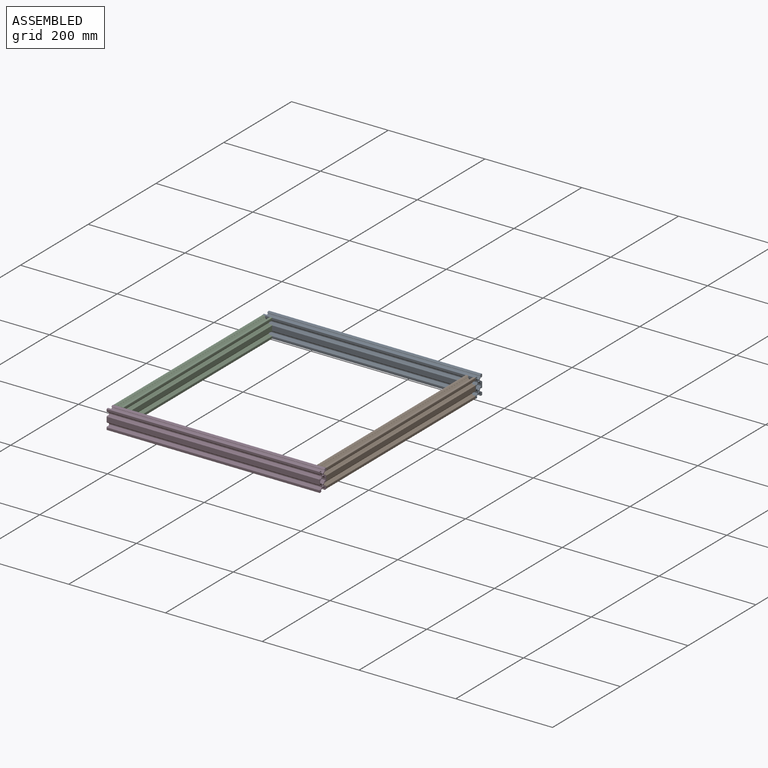
[diagram: assembled view]
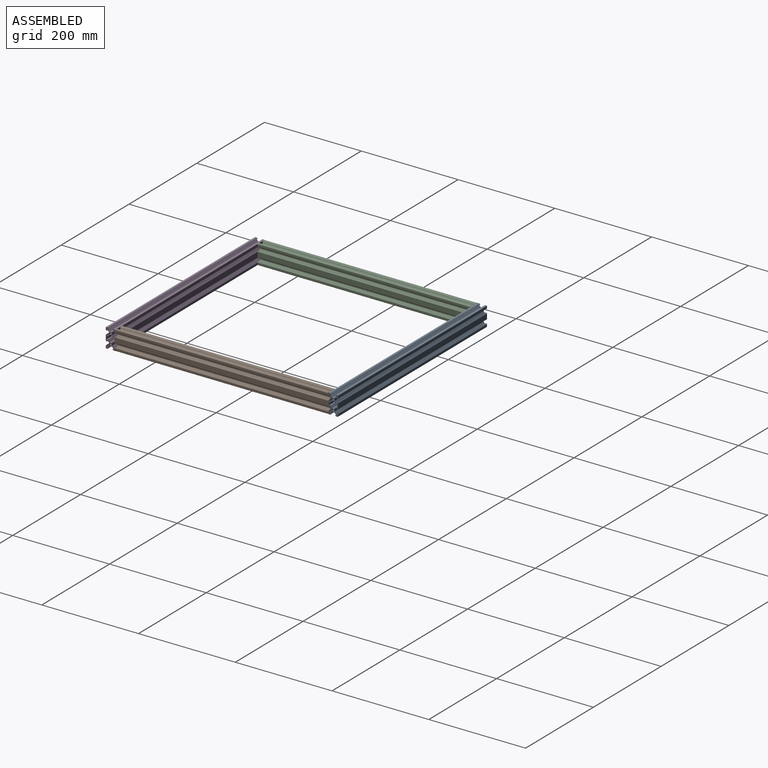
[diagram: assembled view, second angle]
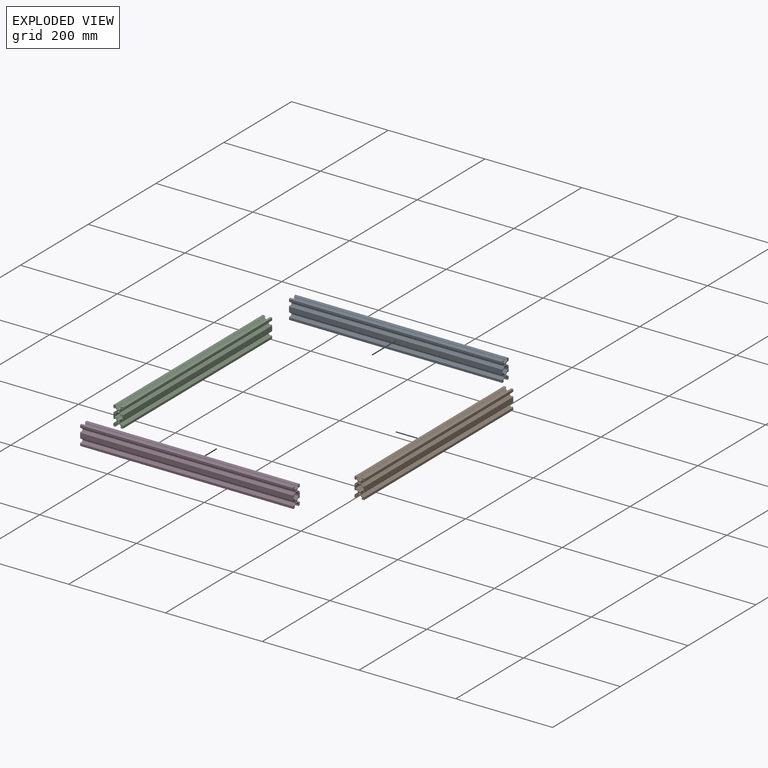
[diagram: exploded view]
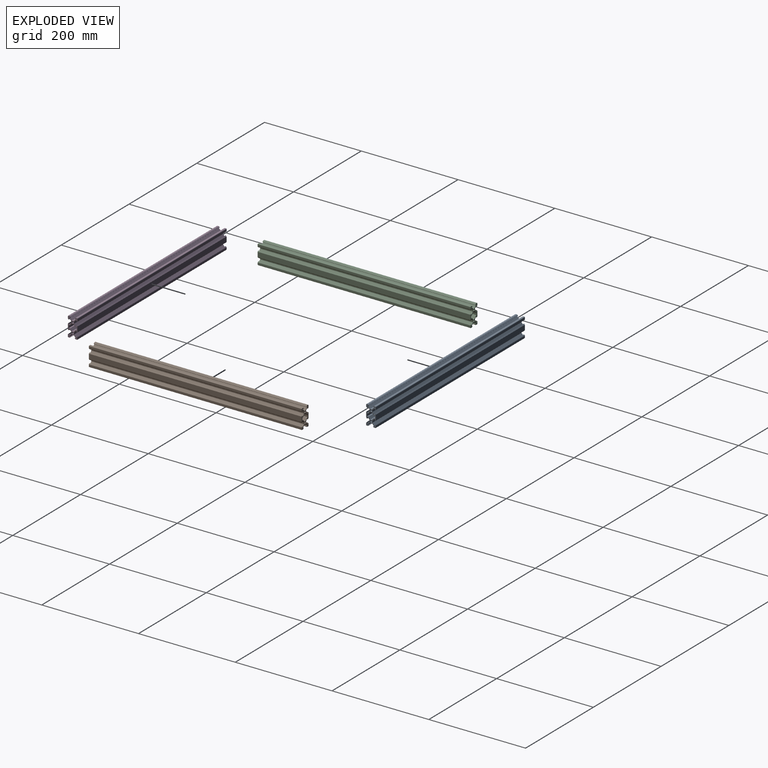
[diagram: exploded view, second angle]
ASSEMBLY  parts=4 mates=9
PART A: 104 faces, bbox 40x20x440 mm
  f0: plane 440x2.6mm, normal (1,0,0), area 1142.7mm2, adj f1,f101,f102,f103
  f1: plane 440x5.4mm, normal (0,-1,0), area 2376mm2, adj f0,f2,f102,f103
  f2: plane 440x2.6mm, normal (-1,0,0), area 1142.7mm2, adj f1,f3,f102,f103
  f3: plane 440x4.46mm, normal (-0.64,-0.77,0), area 2555.6mm2, adj f2,f4,f102,f103
  f4: plane 440x3.76mm, normal (-1,0,0), area 1656.5mm2, adj f3,f5,f102,f103
  f5: plane 440x4.46mm, normal (-0.64,0.77,0), area 2555.6mm2, adj f4,f6,f102,f103
  f6: plane 440x2.6mm, normal (-1,0,0), area 1142.7mm2, adj f5,f7,f102,f103
  f7: plane 440x5.4mm, normal (0,1,0), area 2376mm2, adj f6,f8,f102,f103
  f8: plane 440x2.6mm, normal (1,0,0), area 1142.7mm2, adj f7,f9,f102,f103
  f9: plane 440x4.46mm, normal (0.64,0.77,0), area 2555.6mm2, adj f8,f10,f102,f103
  f10: plane 440x3.76mm, normal (1,0,0), area 1656.5mm2, adj f9,f101,f102,f103
  f11: plane 440x1.06mm, normal (0.71,0.71,0), area 660mm2, adj f12,f96,f102,f103
  f12: plane 440x0.79mm, normal (1,0,0), area 346mm2, adj f11,f13,f102,f103
  f13: plane 440x1.85mm, normal (0,-1,0), area 812.7mm2, adj f12,f14,f102,f103
  f14: plane 440x1.85mm, normal (-1,0,0), area 812.7mm2, adj f13,f96,f102,f103
  f15: plane 440x0.79mm, normal (0,-1,0), area 346mm2, adj f16,f97,f102,f103
  f16: plane 440x1.85mm, normal (-1,0,0), area 812.7mm2, adj f15,f17,f102,f103
  f17: plane 440x1.85mm, normal (0,1,0), area 812.7mm2, adj f16,f18,f102,f103
  f18: plane 440x0.79mm, normal (1,0,0), area 346mm2, adj f17,f97,f102,f103
  f19: plane 440x0.79mm, normal (0,-1,0), area 346mm2, adj f20,f98,f102,f103
  f20: plane 440x1.06mm, normal (-0.71,-0.71,0), area 660mm2, adj f19,f21,f102,f103
  f21: plane 440x0.79mm, normal (-1,0,0), area 346mm2, adj f20,f22,f102,f103
  f22: plane 440x1.85mm, normal (0,1,0), area 812.7mm2, adj f21,f98,f102,f103
  f23: plane 440x1.85mm, normal (1,0,0), area 812.7mm2, adj f24,f99,f102,f103
  f24: plane 440x1.85mm, normal (0,-1,0), area 812.7mm2, adj f23,f25,f102,f103
  f25: plane 440x0.79mm, normal (-1,0,0), area 346mm2, adj f24,f26,f102,f103
  f26: plane 440x1.06mm, normal (-0.71,0.71,0), area 660mm2, adj f25,f99,f102,f103
  f27: plane 440x3.72mm, normal (0.71,0.71,0), area 2315.2mm2, adj f28,f100,f102,f103
  f28: plane 440x1.54mm, normal (1,0,0), area 676mm2, adj f27,f29,f102,f103
  f29: plane 440x2.4mm, normal (0,-1,0), area 1056mm2, adj f28,f30,f102,f103
  f30: plane 440x1.8mm, normal (0.71,0.71,0), area 1120.1mm2, adj f29,f31,f102,f103
  f31: plane 440x4.1mm, normal (0,1,0), area 1804mm2, adj f30,f32,f102,f103
  f32: cylinder r=1mm len=440mm, axis (0,0,1), area 691.2mm2, adj f31,f33,f102,f103
  f33: plane 440x3.15mm, normal (-1,0,0), area 1385.3mm2, adj f32,f34,f102,f103
  f34: plane 440x1.9mm, normal (-0.71,-0.71,0), area 1184.2mm2, adj f33,f35,f102,f103
  f35: plane 440x1.65mm, normal (1,0,0), area 728mm2, adj f34,f36,f102,f103
  f36: plane 440x1.54mm, normal (0,-1,0), area 676mm2, adj f35,f37,f102,f103
  f37: plane 440x3.72mm, normal (-0.71,-0.71,0), area 2315.2mm2, adj f36,f38,f102,f103
  f38: plane 440x3.76mm, normal (-1,0,0), area 1656.5mm2, adj f37,f39,f102,f103
  f39: plane 440x3.72mm, normal (-0.71,0.71,0), area 2315.2mm2, adj f38,f40,f102,f103
  f40: plane 440x1.54mm, normal (0,1,0), area 676mm2, adj f39,f41,f102,f103
  f41: plane 440x1.65mm, normal (1,0,0), area 728mm2, adj f40,f42,f102,f103
  f42: plane 440x1.9mm, normal (-0.71,0.71,0), area 1184.2mm2, adj f41,f43,f102,f103
  f43: plane 440x3.15mm, normal (-1,0,0), area 1385.3mm2, adj f42,f44,f102,f103
  f44: cylinder r=1mm len=440mm, axis (0,0,1), area 691.2mm2, adj f43,f45,f102,f103
  f45: plane 440x4.1mm, normal (0,-1,0), area 1804mm2, adj f44,f46,f102,f103
  f46: plane 440x1.8mm, normal (0.71,-0.71,0), area 1120.1mm2, adj f45,f47,f102,f103
  f47: plane 440x2.4mm, normal (0,1,0), area 1056mm2, adj f46,f48,f102,f103
  f48: plane 440x1.54mm, normal (1,0,0), area 676mm2, adj f47,f49,f102,f103
  f49: plane 440x3.72mm, normal (0.71,-0.71,0), area 2315.2mm2, adj f48,f50,f102,f103
  f50: plane 440x3.55mm, normal (0,-1,0), area 1561.6mm2, adj f49,f51,f102,f103
  f51: plane 440x4.03mm, normal (-0.64,-0.77,0), area 2309.3mm2, adj f50,f52,f102,f103
  f52: plane 440x1.9mm, normal (-1,0,0), area 833.7mm2, adj f51,f53,f102,f103
  f53: plane 440x2.7mm, normal (0,1,0), area 1188mm2, adj f52,f54,f102,f103
  f54: plane 440x1.8mm, normal (-0.71,-0.71,0), area 1120.1mm2, adj f53,f55,f102,f103
  f55: plane 440x10.2mm, normal (0,-1,0), area 4488mm2, adj f54,f56,f102,f103
  f56: plane 440x1.8mm, normal (0.71,-0.71,0), area 1120.1mm2, adj f55,f57,f102,f103
  f57: plane 440x2.7mm, normal (0,1,0), area 1188mm2, adj f56,f58,f102,f103
  f58: plane 440x1.9mm, normal (1,0,0), area 833.7mm2, adj f57,f59,f102,f103
  f59: plane 440x4.03mm, normal (0.64,-0.77,0), area 2309.3mm2, adj f58,f60,f102,f103
  f60: plane 440x3.55mm, normal (0,-1,0), area 1561.6mm2, adj f59,f61,f102,f103
  f61: plane 440x3.72mm, normal (-0.71,-0.71,0), area 2315.2mm2, adj f60,f62,f102,f103
  f62: plane 440x1.54mm, normal (-1,0,0), area 676mm2, adj f61,f63,f102,f103
  f63: plane 440x2.4mm, normal (0,1,0), area 1056mm2, adj f62,f64,f102,f103
  f64: plane 440x1.8mm, normal (-0.71,-0.71,0), area 1120.1mm2, adj f63,f65,f102,f103
  f65: plane 440x4.1mm, normal (0,-1,0), area 1804mm2, adj f64,f66,f102,f103
  f66: cylinder r=1mm len=440mm, axis (0,0,1), area 691.2mm2, adj f65,f67,f102,f103
  f67: plane 440x3.15mm, normal (1,0,0), area 1385.3mm2, adj f66,f68,f102,f103
  f68: plane 440x1.9mm, normal (0.71,0.71,0), area 1184.2mm2, adj f67,f69,f102,f103
  f69: plane 440x1.65mm, normal (-1,0,0), area 728mm2, adj f68,f70,f102,f103
  f70: plane 440x1.54mm, normal (0,1,0), area 676mm2, adj f69,f71,f102,f103
  f71: plane 440x3.72mm, normal (0.71,0.71,0), area 2315.2mm2, adj f70,f72,f102,f103
  f72: plane 440x3.76mm, normal (1,0,0), area 1656.5mm2, adj f71,f73,f102,f103
  f73: plane 440x3.72mm, normal (0.71,-0.71,0), area 2315.2mm2, adj f72,f74,f102,f103
  f74: plane 440x1.54mm, normal (0,-1,0), area 676mm2, adj f73,f75,f102,f103
  f75: plane 440x1.65mm, normal (-1,0,0), area 728mm2, adj f74,f76,f102,f103
  f76: plane 440x1.9mm, normal (0.71,-0.71,0), area 1184.2mm2, adj f75,f77,f102,f103
  f77: plane 440x3.15mm, normal (1,0,0), area 1385.3mm2, adj f76,f78,f102,f103
  f78: cylinder r=1mm len=440mm, axis (0,0,1), area 691.2mm2, adj f77,f79,f102,f103
  f79: plane 440x4.1mm, normal (0,1,0), area 1804mm2, adj f78,f80,f102,f103
  f80: plane 440x1.8mm, normal (-0.71,0.71,0), area 1120.1mm2, adj f79,f81,f102,f103
  f81: plane 440x2.4mm, normal (0,-1,0), area 1056mm2, adj f80,f82,f102,f103
  f82: plane 440x1.54mm, normal (-1,0,0), area 676mm2, adj f81,f83,f102,f103
  f83: plane 440x3.72mm, normal (-0.71,0.71,0), area 2315.2mm2, adj f82,f84,f102,f103
  f84: plane 440x3.55mm, normal (0,1,0), area 1561.6mm2, adj f83,f85,f102,f103
  f85: plane 440x4.03mm, normal (0.64,0.77,0), area 2309.3mm2, adj f84,f86,f102,f103
  f86: plane 440x1.9mm, normal (1,0,0), area 833.7mm2, adj f85,f87,f102,f103
  f87: plane 440x2.7mm, normal (0,-1,0), area 1188mm2, adj f86,f88,f102,f103
  f88: plane 440x1.8mm, normal (0.71,0.71,0), area 1120.1mm2, adj f87,f89,f102,f103
  f89: plane 440x10.2mm, normal (0,1,0), area 4488mm2, adj f88,f90,f102,f103
  f90: plane 440x1.8mm, normal (-0.71,0.71,0), area 1120.1mm2, adj f89,f91,f102,f103
  f91: plane 440x2.7mm, normal (0,-1,0), area 1188mm2, adj f90,f92,f102,f103
  f92: plane 440x1.9mm, normal (-1,0,0), area 833.7mm2, adj f91,f93,f102,f103
  f93: plane 440x4.03mm, normal (-0.64,0.77,0), area 2309.3mm2, adj f92,f100,f102,f103
  f94: cylinder r=2.1mm len=440mm, axis (0,0,1), area 5805.7mm2, adj f102,f103
  f95: cylinder r=2.1mm len=440mm, axis (0,0,1), area 5805.7mm2, adj f102,f103
  f96: plane 440x0.79mm, normal (0,1,0), area 346mm2, adj f11,f14,f102,f103
  f97: plane 440x1.06mm, normal (0.71,-0.71,0), area 660mm2, adj f15,f18,f102,f103
  f98: plane 440x1.85mm, normal (1,0,0), area 812.7mm2, adj f19,f22,f102,f103
  f99: plane 440x0.79mm, normal (0,1,0), area 346mm2, adj f23,f26,f102,f103
  f100: plane 440x3.55mm, normal (0,1,0), area 1561.6mm2, adj f27,f93,f102,f103
  f101: plane 440x4.46mm, normal (0.64,-0.77,0), area 2555.6mm2, adj f0,f10,f102,f103
  f102: plane 40x20mm, normal (0,0,-1), area 236.8mm2, adj f0,f1,f2,f3,f4,f5,f6,f7
  f103: plane 40x20mm, normal (0,0,1), area 236.8mm2, adj f0,f1,f2,f3,f4,f5,f6,f7
PART B: same geometry as A
PART C: same geometry as A
PART D: same geometry as A
PLACE A rot(axis=(0,1,0),90deg) t=(438.87,-330.85,-389.29)mm
PLACE B rot(axis=(-0.58,-0.58,-0.58),120deg) t=(428.73,-340.71,-389.29)mm fixed
PLACE C rot(axis=(-0.58,-0.58,-0.58),120deg) t=(8.73,-340.71,-389.29)mm
PLACE D rot(axis=(0,1,0),90deg) t=(438.87,-790.85,-389.29)mm
MATE planar C.f67 <-> D.f33  axis (0,0,1) through (1.45,-560.71,-369.29)mm
MATE planar C.f102 <-> D.f89  axis (0,-1,0) through (4.25,-780.71,-395.5)mm
MATE planar A.f55 <-> C.f103  axis (0,-1,0) through (218.87,-340.71,-389.29)mm
MATE planar C.f55 <-> A.f102  axis (-1,0,0) through (-1.13,-560.71,-389.29)mm
MATE planar D.f89 <-> B.f102  axis (0,1,0) through (218.87,-780.71,-389.29)mm
MATE planar C.f67 <-> A.f43  axis (0,0,1) through (1.45,-560.71,-369.29)mm
MATE planar C.f55 <-> D.f102  axis (-1,0,0) through (-1.13,-560.71,-389.29)mm
MATE planar B.f89 <-> D.f103  axis (1,0,0) through (438.87,-560.71,-389.29)mm
MATE planar B.f77 <-> D.f33  axis (0,0,1) through (436.3,-560.71,-369.29)mm
